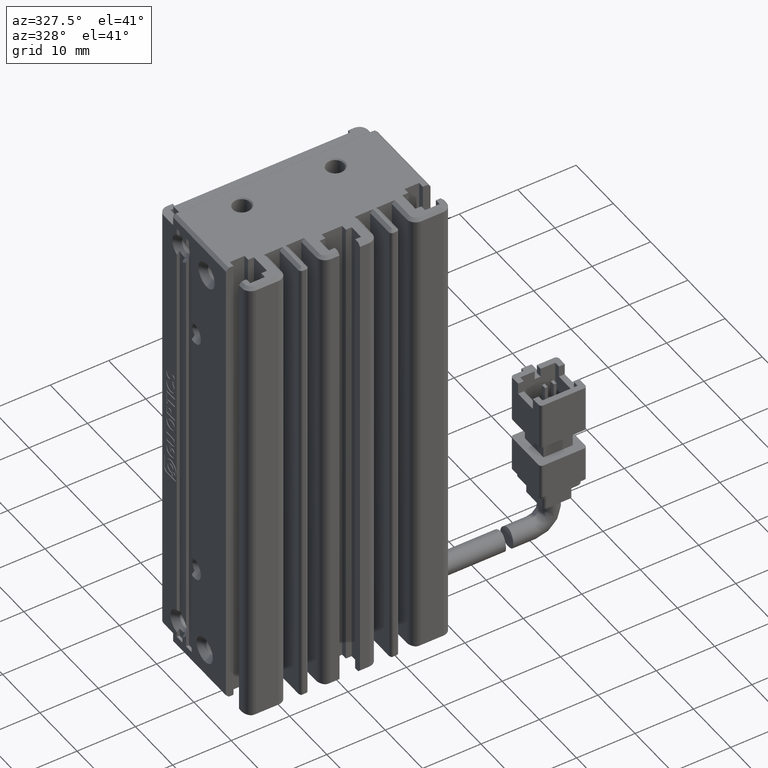
[diagram: clean part render]
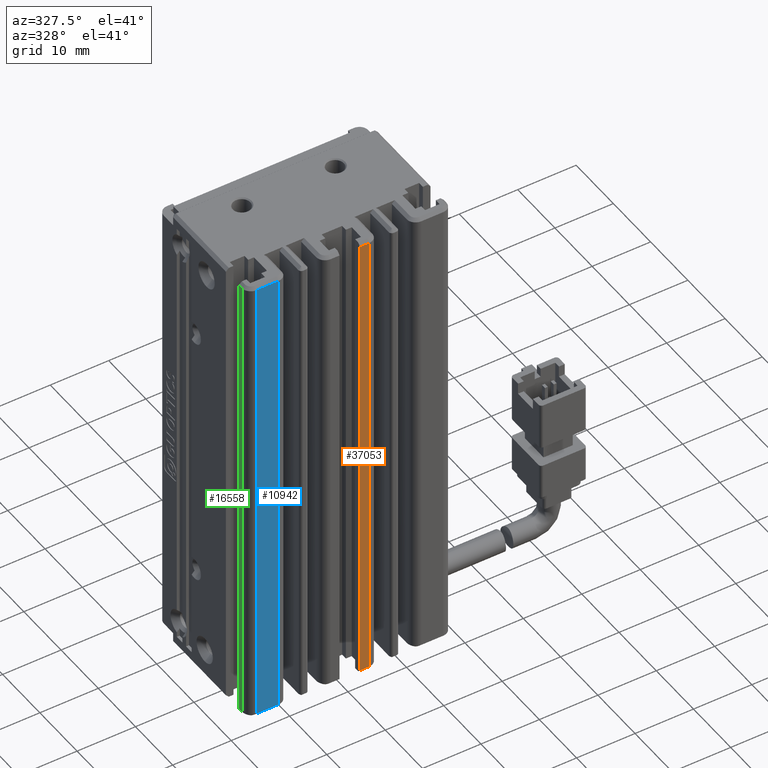
[diagram: same view with three faces highlighted in distinct colors, each labeled with its STEP entity id]
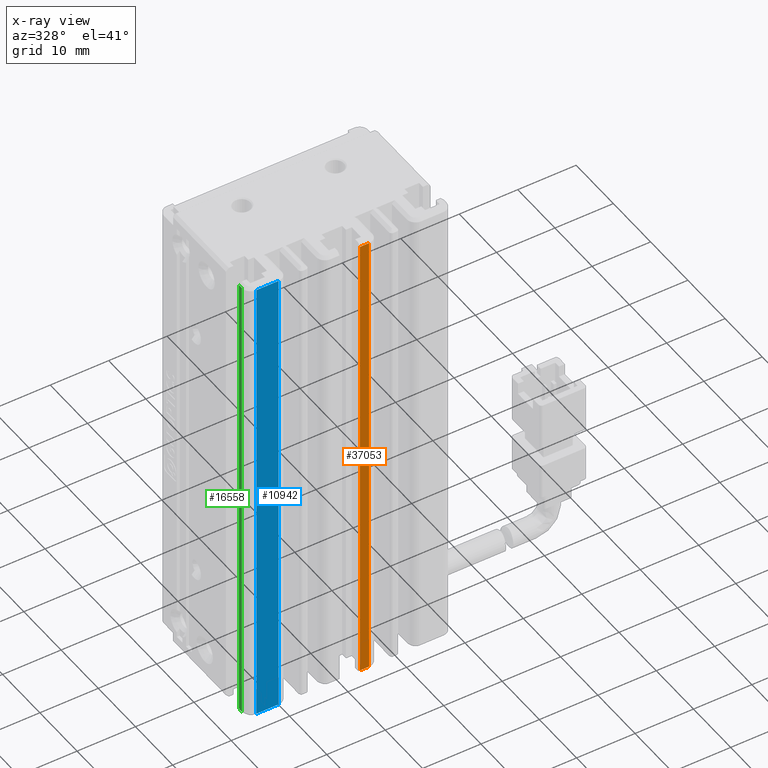
[diagram: x-ray of the same camera — body ghosted, the three highlighted faces saturated]
A machine part, auxiliary view with three faces highlighted in distinct colors.
The next image is the same camera in x-ray (body ghosted, the three faces saturated) — at least one of them is partly hidden behind the body in this view.
Their STEP definitions:

[orange] entity #37053 — the highlighted planar face has unit normal (0, 1, 0).
#1543 = LINE ( 'NONE', #23428, #12476 ) ;
#3052 = VERTEX_POINT ( 'NONE', #36053 ) ;
#4459 = DIRECTION ( 'NONE',  ( 0.0000000000000000000, 1.000000000000000000, 0.0000000000000000000 ) ) ;
#6199 = EDGE_CURVE ( 'NONE', #28151, #3052, #11110, .T. ) ;
#7176 = CARTESIAN_POINT ( 'NONE',  ( 40.92537974683542500, 10.99073232304837000, -74.00000000000001400 ) ) ;
#7421 = FACE_OUTER_BOUND ( 'NONE', #31421, .T. ) ;
#8414 = VECTOR ( 'NONE', #27776, 1000.000000000000000 ) ;
#9113 = DIRECTION ( 'NONE',  ( -0.0000000000000000000, 0.0000000000000000000, -1.000000000000000000 ) ) ;
#11110 = LINE ( 'NONE', #21575, #8414 ) ;
#12434 = DIRECTION ( 'NONE',  ( 1.000000000000000000, 0.0000000000000000000, -0.0000000000000000000 ) ) ;
#12476 = VECTOR ( 'NONE', #20726, 1000.000000000000000 ) ;
#13421 = EDGE_CURVE ( 'NONE', #20380, #28151, #1543, .T. ) ;
#14486 = CARTESIAN_POINT ( 'NONE',  ( 42.67537974683542500, 10.99073232304837000, -74.00000000000001400 ) ) ;
#15804 = LINE ( 'NONE', #14486, #31841 ) ;
#17578 = ORIENTED_EDGE ( 'NONE', *, *, #13421, .F. ) ;
#18517 = CARTESIAN_POINT ( 'NONE',  ( 42.67537974683542500, 10.99073232304837000, -74.50000000000001400 ) ) ;
#18893 = VERTEX_POINT ( 'NONE', #18517 ) ;
#19235 = AXIS2_PLACEMENT_3D ( 'NONE', #7176, #4459, #36352 ) ;
#19298 = ORIENTED_EDGE ( 'NONE', *, *, #35840, .F. ) ;
#20380 = VERTEX_POINT ( 'NONE', #28447 ) ;
#20726 = DIRECTION ( 'NONE',  ( -0.0000000000000000000, -0.0000000000000000000, -1.000000000000000000 ) ) ;
#21575 = CARTESIAN_POINT ( 'NONE',  ( 40.92537974683542500, 10.99073232304837000, -155.5000000000000000 ) ) ;
#23333 = ORIENTED_EDGE ( 'NONE', *, *, #36265, .T. ) ;
#23428 = CARTESIAN_POINT ( 'NONE',  ( 44.22537974683540100, 10.99073232304837000, -74.00000000000001400 ) ) ;
#26495 = CARTESIAN_POINT ( 'NONE',  ( 40.92537974683542500, 10.99073232304837000, -74.50000000000001400 ) ) ;
#27776 = DIRECTION ( 'NONE',  ( -1.000000000000000000, -0.0000000000000000000, 0.0000000000000000000 ) ) ;
#27872 = VECTOR ( 'NONE', #12434, 1000.000000000000000 ) ;
#28054 = PLANE ( 'NONE',  #19235 ) ;
#28151 = VERTEX_POINT ( 'NONE', #36002 ) ;
#28447 = CARTESIAN_POINT ( 'NONE',  ( 44.22537974683540800, 10.99073232304568400, -74.49999999998362900 ) ) ;
#31421 = EDGE_LOOP ( 'NONE', ( #19298, #23333, #31759, #17578 ) ) ;
#31759 = ORIENTED_EDGE ( 'NONE', *, *, #6199, .F. ) ;
#31841 = VECTOR ( 'NONE', #9113, 1000.000000000000000 ) ;
#35606 = LINE ( 'NONE', #26495, #27872 ) ;
#35840 = EDGE_CURVE ( 'NONE', #18893, #20380, #35606, .T. ) ;
#36002 = CARTESIAN_POINT ( 'NONE',  ( 44.22537974683540100, 10.99073232305989500, -155.5000000000163700 ) ) ;
#36053 = CARTESIAN_POINT ( 'NONE',  ( 42.67537974683542500, 10.99073232304837000, -155.5000000000000000 ) ) ;
#36265 = EDGE_CURVE ( 'NONE', #18893, #3052, #15804, .T. ) ;
#36352 = DIRECTION ( 'NONE',  ( 0.0000000000000000000, -0.0000000000000000000, 1.000000000000000000 ) ) ;
#37053 = ADVANCED_FACE ( 'NONE', ( #7421 ), #28054, .F. ) ;

[blue] entity #10942 — the highlighted planar face has unit normal (0, -1, 0).
#98 = DIRECTION ( 'NONE',  ( -0.0000000000000000000, 0.0000000000000000000, 1.000000000000000000 ) ) ;
#992 = LINE ( 'NONE', #34700, #30798 ) ;
#2179 = CARTESIAN_POINT ( 'NONE',  ( 28.72537974683542200, 10.99073232304568400, -74.49999999999784000 ) ) ;
#2970 = LINE ( 'NONE', #17679, #8485 ) ;
#3270 = ORIENTED_EDGE ( 'NONE', *, *, #20600, .T. ) ;
#3284 = DIRECTION ( 'NONE',  ( 0.0000000000000000000, -1.000000000000000000, 0.0000000000000000000 ) ) ;
#4138 = VERTEX_POINT ( 'NONE', #2179 ) ;
#4160 = CARTESIAN_POINT ( 'NONE',  ( 28.72537974683542200, 10.99073232303147300, -155.4999999999879500 ) ) ;
#5134 = ORIENTED_EDGE ( 'NONE', *, *, #30719, .F. ) ;
#5249 = VERTEX_POINT ( 'NONE', #10834 ) ;
#6526 = FACE_OUTER_BOUND ( 'NONE', #36295, .T. ) ;
#8485 = VECTOR ( 'NONE', #31898, 1000.000000000000000 ) ;
#10834 = CARTESIAN_POINT ( 'NONE',  ( 24.92537974683541800, 10.99073232307142000, -155.4999999999759000 ) ) ;
#10942 = ADVANCED_FACE ( 'NONE', ( #6526 ), #14799, .T. ) ;
#14799 = PLANE ( 'NONE',  #34833 ) ;
#15903 = VERTEX_POINT ( 'NONE', #24423 ) ;
#17381 = CARTESIAN_POINT ( 'NONE',  ( 40.92537974683542500, 10.99073232304837000, -74.00000000000001400 ) ) ;
#17679 = CARTESIAN_POINT ( 'NONE',  ( 40.92537974683542500, 10.99073232304837000, -155.5000000000000000 ) ) ;
#17916 = DIRECTION ( 'NONE',  ( 0.0000000000000000000, -0.0000000000000000000, -1.000000000000000000 ) ) ;
#18158 = EDGE_CURVE ( 'NONE', #15903, #5249, #36612, .T. ) ;
#19272 = CARTESIAN_POINT ( 'NONE',  ( 40.92537974683542500, 10.99073232304837000, -74.50000000000001400 ) ) ;
#19540 = DIRECTION ( 'NONE',  ( -1.000000000000000000, 0.0000000000000000000, -0.0000000000000000000 ) ) ;
#19794 = ORIENTED_EDGE ( 'NONE', *, *, #20958, .T. ) ;
#20600 = EDGE_CURVE ( 'NONE', #35957, #4138, #992, .T. ) ;
#20958 = EDGE_CURVE ( 'NONE', #4138, #15903, #34414, .T. ) ;
#24423 = CARTESIAN_POINT ( 'NONE',  ( 24.92537974683542500, 10.99073232301726200, -74.50000000001097100 ) ) ;
#26381 = DIRECTION ( 'NONE',  ( 0.0000000000000000000, -0.0000000000000000000, -1.000000000000000000 ) ) ;
#30671 = VECTOR ( 'NONE', #17916, 1000.000000000000000 ) ;
#30719 = EDGE_CURVE ( 'NONE', #35957, #5249, #2970, .T. ) ;
#30798 = VECTOR ( 'NONE', #98, 1000.000000000000000 ) ;
#31898 = DIRECTION ( 'NONE',  ( -1.000000000000000000, -0.0000000000000000000, -0.0000000000000000000 ) ) ;
#32282 = CARTESIAN_POINT ( 'NONE',  ( 24.92537974683542500, 10.99073232304837000, -74.00000000000001400 ) ) ;
#33471 = VECTOR ( 'NONE', #19540, 1000.000000000000000 ) ;
#34295 = ORIENTED_EDGE ( 'NONE', *, *, #18158, .T. ) ;
#34414 = LINE ( 'NONE', #19272, #33471 ) ;
#34700 = CARTESIAN_POINT ( 'NONE',  ( 28.72537974683542200, 10.99073232304837000, -74.00000000000001400 ) ) ;
#34833 = AXIS2_PLACEMENT_3D ( 'NONE', #17381, #3284, #26381 ) ;
#35957 = VERTEX_POINT ( 'NONE', #4160 ) ;
#36295 = EDGE_LOOP ( 'NONE', ( #34295, #5134, #3270, #19794 ) ) ;
#36612 = LINE ( 'NONE', #32282, #30671 ) ;

[green] entity #16558 — the highlighted planar face has unit normal (-1, -0, 0).
#282 = LINE ( 'NONE', #29299, #17249 ) ;
#2940 = DIRECTION ( 'NONE',  ( 4.336808689942002000E-015, -1.000000000000000000, 0.0000000000000000000 ) ) ;
#4570 = LINE ( 'NONE', #33561, #5507 ) ;
#5507 = VECTOR ( 'NONE', #30637, 1000.000000000000000 ) ;
#5565 = CARTESIAN_POINT ( 'NONE',  ( 23.42537974685361800, 12.49073232304837000, -155.4999999999849400 ) ) ;
#7936 = CARTESIAN_POINT ( 'NONE',  ( 23.42537974683545000, 7.083797468354362100, -74.50000000000001400 ) ) ;
#9827 = PLANE ( 'NONE',  #24402 ) ;
#9904 = EDGE_CURVE ( 'NONE', #18110, #30964, #282, .T. ) ;
#10696 = ORIENTED_EDGE ( 'NONE', *, *, #23339, .T. ) ;
#11639 = VERTEX_POINT ( 'NONE', #18734 ) ;
#13646 = CARTESIAN_POINT ( 'NONE',  ( 23.42537974683542100, 13.29073232304837200, -155.5000000000000000 ) ) ;
#16558 = ADVANCED_FACE ( 'NONE', ( #23635 ), #9827, .T. ) ;
#17249 = VECTOR ( 'NONE', #32206, 1000.000000000000000 ) ;
#18110 = VERTEX_POINT ( 'NONE', #20012 ) ;
#18734 = CARTESIAN_POINT ( 'NONE',  ( 23.42537974681098200, 12.49073232304837000, -74.50000000001097100 ) ) ;
#19620 = EDGE_LOOP ( 'NONE', ( #35467, #10696, #30534, #27748 ) ) ;
#20012 = CARTESIAN_POINT ( 'NONE',  ( 23.42537974683542100, 13.29073232304837200, -74.50000000000001400 ) ) ;
#20413 = EDGE_CURVE ( 'NONE', #11639, #18110, #22580, .T. ) ;
#21152 = DIRECTION ( 'NONE',  ( -1.000000000000000000, -4.336808689942002000E-015, 0.0000000000000000000 ) ) ;
#22580 = LINE ( 'NONE', #7936, #23496 ) ;
#23339 = EDGE_CURVE ( 'NONE', #30964, #36190, #31020, .T. ) ;
#23496 = VECTOR ( 'NONE', #25507, 1000.000000000000000 ) ;
#23635 = FACE_OUTER_BOUND ( 'NONE', #19620, .T. ) ;
#24402 = AXIS2_PLACEMENT_3D ( 'NONE', #33311, #21152, #33183 ) ;
#25507 = DIRECTION ( 'NONE',  ( -4.336808689942002000E-015, 1.000000000000000000, -0.0000000000000000000 ) ) ;
#25998 = VECTOR ( 'NONE', #2940, 1000.000000000000000 ) ;
#27748 = ORIENTED_EDGE ( 'NONE', *, *, #20413, .T. ) ;
#29299 = CARTESIAN_POINT ( 'NONE',  ( 23.42537974683542100, 13.29073232304837400, -74.00000000000001400 ) ) ;
#30534 = ORIENTED_EDGE ( 'NONE', *, *, #34625, .F. ) ;
#30637 = DIRECTION ( 'NONE',  ( -0.0000000000000000000, -0.0000000000000000000, -1.000000000000000000 ) ) ;
#30964 = VERTEX_POINT ( 'NONE', #13646 ) ;
#31020 = LINE ( 'NONE', #31649, #25998 ) ;
#31649 = CARTESIAN_POINT ( 'NONE',  ( 23.42537974683545000, 7.083797468354362100, -155.5000000000000000 ) ) ;
#32206 = DIRECTION ( 'NONE',  ( -0.0000000000000000000, -0.0000000000000000000, -1.000000000000000000 ) ) ;
#33183 = DIRECTION ( 'NONE',  ( 4.336808689942002000E-015, -1.000000000000000000, 0.0000000000000000000 ) ) ;
#33311 = CARTESIAN_POINT ( 'NONE',  ( 23.42537974683545000, 7.083797468354362100, -74.00000000000001400 ) ) ;
#33561 = CARTESIAN_POINT ( 'NONE',  ( 23.42537974683542500, 12.49073232304837000, -74.00000000000001400 ) ) ;
#34625 = EDGE_CURVE ( 'NONE', #11639, #36190, #4570, .T. ) ;
#35467 = ORIENTED_EDGE ( 'NONE', *, *, #9904, .T. ) ;
#36190 = VERTEX_POINT ( 'NONE', #5565 ) ;